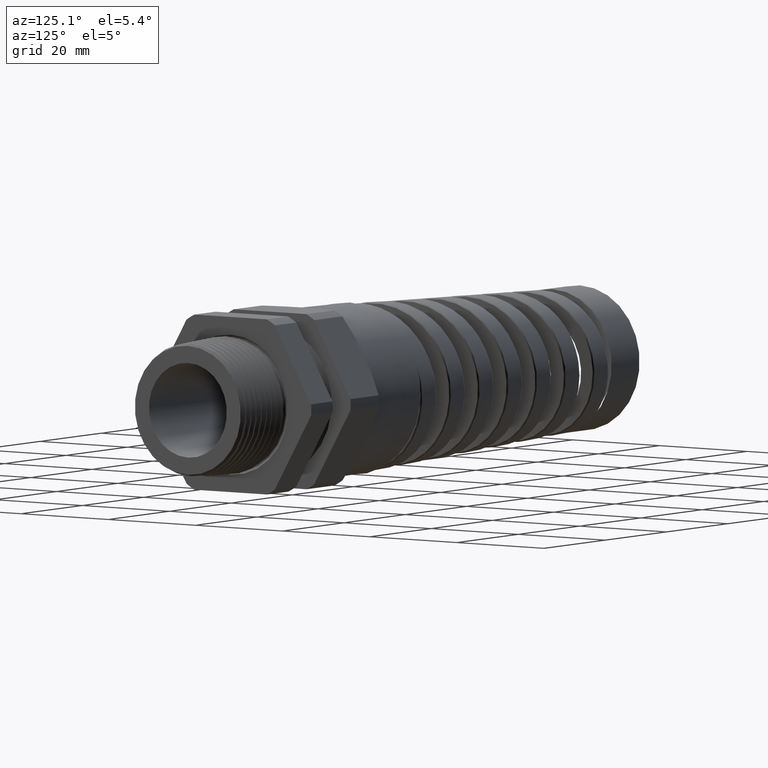
[diagram: clean part render]
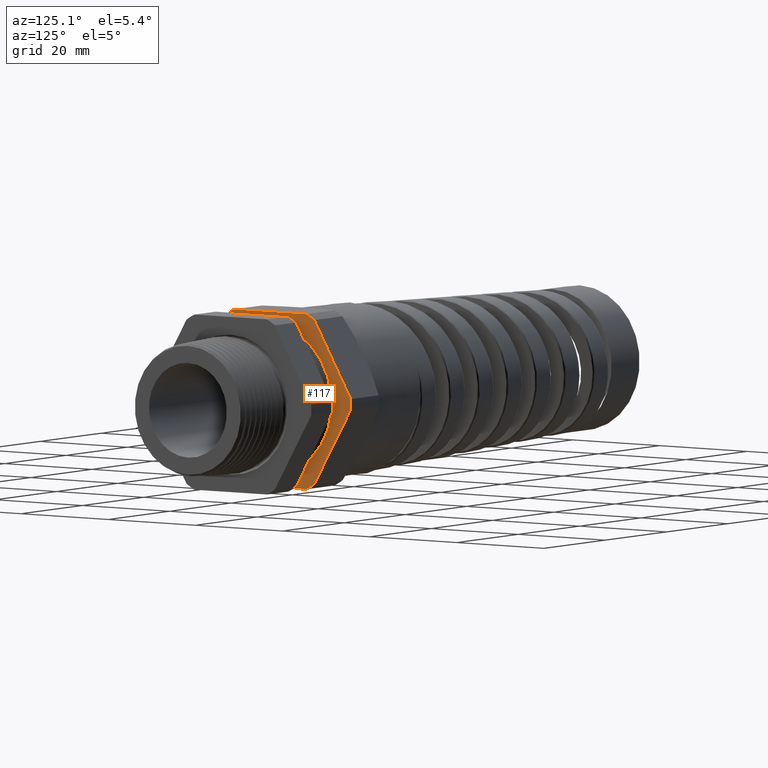
[diagram: same view with one face highlighted and labeled with its STEP entity id]
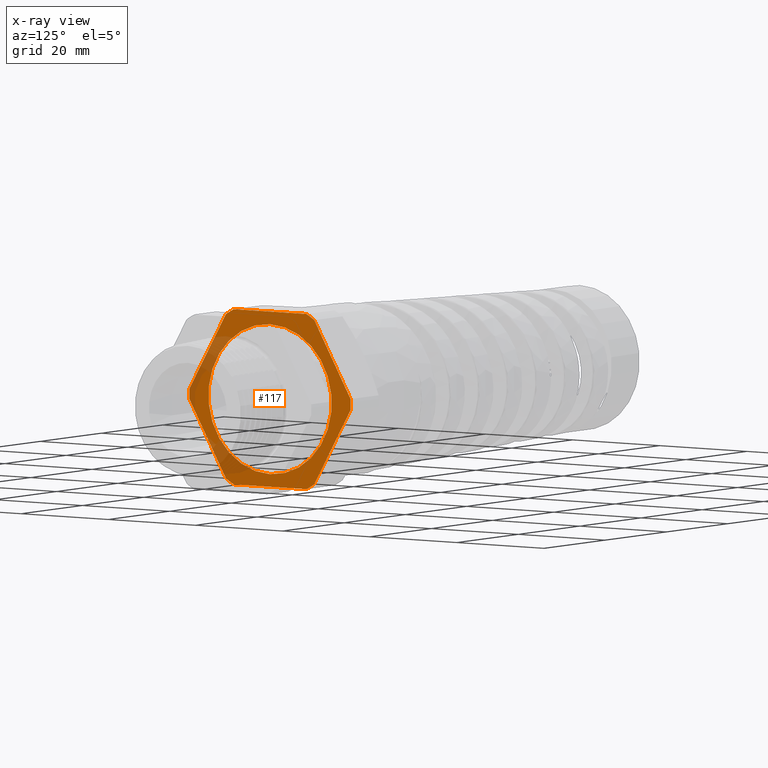
[diagram: x-ray of the same camera — body ghosted, the highlighted face saturated]
A machine part, auxiliary view. The second image highlights one B-rep face of the part: STEP entity #117.
The next image is the same camera in x-ray: the body ghosted, the highlighted face saturated — about 18% of this face is hidden behind the body in this view.
In plain terms, the highlighted planar face has unit normal (-1, 0, 0).
Its self-contained STEP definition (entity closure, byte-faithful):
#112 = EDGE_CURVE ( 'NONE', #9888, #9638, #12556, .T. ) ;
#113 = ORIENTED_EDGE ( 'NONE', *, *, #112, .F. ) ;
#117 = ADVANCED_FACE ( 'NONE', ( #12551, #12550 ), #12549, .F. ) ;
#212 = EDGE_CURVE ( 'NONE', #13719, #4190, #12669, .T. ) ;
#377 = ORIENTED_EDGE ( 'NONE', *, *, #212, .F. ) ;
#378 = ORIENTED_EDGE ( 'NONE', *, *, #13845, .F. ) ;
#518 = ORIENTED_EDGE ( 'NONE', *, *, #3983, .F. ) ;
#732 = VERTEX_POINT ( 'NONE', #13358 ) ;
#2852 = DIRECTION ( 'NONE',  ( 0.0000000000000000000, 0.5000000000000003300, -0.8660254037844383700 ) ) ;
#2853 = VECTOR ( 'NONE', #2852, 39.37007874015748100 ) ;
#2862 = CARTESIAN_POINT ( 'NONE',  ( -0.5058333333333334700, 0.7020415124598852200, 0.08402843139697996300 ) ) ;
#2863 = LINE ( 'NONE', #2862, #2853 ) ;
#2884 = CARTESIAN_POINT ( 'NONE',  ( -0.5058333333333336900, 0.7268402752278255700, 0.04107571431805956400 ) ) ;
#2889 = DIRECTION ( 'NONE',  ( 0.0000000000000000000, 0.0000000000000000000, 1.000000000000000000 ) ) ;
#2890 = DIRECTION ( 'NONE',  ( -1.000000000000000000, 0.0000000000000000000, 0.0000000000000000000 ) ) ;
#2891 = AXIS2_PLACEMENT_3D ( 'NONE', #2898, #2890, #2889 ) ;
#2892 = CIRCLE ( 'NONE', #2891, 0.7280000000000000900 ) ;
#2898 = CARTESIAN_POINT ( 'NONE',  ( -0.5058333333333334700, 0.0000000000000000000, 0.0000000000000000000 ) ) ;
#2902 = DIRECTION ( 'NONE',  ( 0.0000000000000000000, -0.5000000000000001100, -0.8660254037844386000 ) ) ;
#2903 = VECTOR ( 'NONE', #2902, 39.37007874015748100 ) ;
#2904 = CARTESIAN_POINT ( 'NONE',  ( -0.5058333333333334700, 0.7020415124598851100, -0.08402843139697985200 ) ) ;
#2913 = LINE ( 'NONE', #2904, #2903 ) ;
#2935 = CARTESIAN_POINT ( 'NONE',  ( -0.5058333333333334700, -0.4237915124598847800, -0.5659715686030204500 ) ) ;
#2937 = LINE ( 'NONE', #2935, #9113 ) ;
#2959 = CARTESIAN_POINT ( 'NONE',  ( -0.5058333333333336900, 0.3278475255358810900, -0.6500000000000000200 ) ) ;
#2965 = DIRECTION ( 'NONE',  ( 0.0000000000000000000, -1.000000000000000000, 0.0000000000000000000 ) ) ;
#2966 = VECTOR ( 'NONE', #2965, 39.37007874015748100 ) ;
#2967 = CARTESIAN_POINT ( 'NONE',  ( -0.5058333333333334700, 0.5565000000000001100, -0.6500000000000000200 ) ) ;
#2972 = LINE ( 'NONE', #2967, #2966 ) ;
#2986 = CARTESIAN_POINT ( 'NONE',  ( -0.5058333333333334700, 0.0000000000000000000, 0.0000000000000000000 ) ) ;
#3023 = CARTESIAN_POINT ( 'NONE',  ( -0.5058333333333336900, -0.3989927496919442600, -0.6089242856819405700 ) ) ;
#3024 = DIRECTION ( 'NONE',  ( 0.0000000000000000000, 1.000000000000000000, 0.0000000000000000000 ) ) ;
#3025 = VECTOR ( 'NONE', #3024, 39.37007874015748100 ) ;
#3026 = CARTESIAN_POINT ( 'NONE',  ( -0.5058333333333334700, 0.5565000000000001100, 0.6499999999999999100 ) ) ;
#3027 = LINE ( 'NONE', #3026, #3025 ) ;
#3037 = CARTESIAN_POINT ( 'NONE',  ( -0.5058333333333336900, 0.3989927496919443200, -0.6089242856819405700 ) ) ;
#3038 = CARTESIAN_POINT ( 'NONE',  ( -0.5058333333333336900, 0.3278475255358814200, 0.6499999999999998000 ) ) ;
#3039 = DIRECTION ( 'NONE',  ( 0.0000000000000000000, 0.0000000000000000000, 1.000000000000000000 ) ) ;
#3040 = DIRECTION ( 'NONE',  ( -1.000000000000000000, 0.0000000000000000000, 0.0000000000000000000 ) ) ;
#3041 = AXIS2_PLACEMENT_3D ( 'NONE', #2986, #3040, #3039 ) ;
#3042 = CIRCLE ( 'NONE', #3041, 0.7280000000000000900 ) ;
#3075 = CARTESIAN_POINT ( 'NONE',  ( -0.5058333333333336900, 6.815159437255022100E-017, -0.5565000000000001100 ) ) ;
#3109 = DIRECTION ( 'NONE',  ( 0.0000000000000000000, 0.0000000000000000000, -1.000000000000000000 ) ) ;
#3110 = DIRECTION ( 'NONE',  ( 1.000000000000000000, 0.0000000000000000000, 0.0000000000000000000 ) ) ;
#3111 = CARTESIAN_POINT ( 'NONE',  ( -0.5058333333333336900, 0.0000000000000000000, 0.0000000000000000000 ) ) ;
#3112 = AXIS2_PLACEMENT_3D ( 'NONE', #3111, #3110, #3109 ) ;
#3113 = CIRCLE ( 'NONE', #3112, 0.5565000000000001100 ) ;
#3118 = CARTESIAN_POINT ( 'NONE',  ( -0.5058333333333336900, 0.0000000000000000000, 0.5565000000000001100 ) ) ;
#3834 = DIRECTION ( 'NONE',  ( 0.0000000000000000000, -0.5000000000000003300, 0.8660254037844383700 ) ) ;
#3897 = VERTEX_POINT ( 'NONE', #13510 ) ;
#3898 = EDGE_CURVE ( 'NONE', #9432, #3897, #13509, .T. ) ;
#3899 = VERTEX_POINT ( 'NONE', #13504 ) ;
#3983 = EDGE_CURVE ( 'NONE', #4190, #3899, #13499, .T. ) ;
#4190 = VERTEX_POINT ( 'NONE', #13554 ) ;
#4604 = VERTEX_POINT ( 'NONE', #13541 ) ;
#5086 = EDGE_CURVE ( 'NONE', #9601, #4604, #13535, .T. ) ;
#9113 = VECTOR ( 'NONE', #3834, 39.37007874015748100 ) ;
#9421 = EDGE_CURVE ( 'NONE', #4604, #9432, #2863, .T. ) ;
#9429 = EDGE_CURVE ( 'NONE', #732, #9612, #2892, .T. ) ;
#9432 = VERTEX_POINT ( 'NONE', #2884 ) ;
#9453 = EDGE_CURVE ( 'NONE', #3897, #9602, #2913, .T. ) ;
#9469 = EDGE_CURVE ( 'NONE', #9612, #13844, #2937, .T. ) ;
#9571 = EDGE_CURVE ( 'NONE', #9576, #732, #2972, .T. ) ;
#9576 = VERTEX_POINT ( 'NONE', #2959 ) ;
#9598 = EDGE_CURVE ( 'NONE', #9602, #9576, #3042, .T. ) ;
#9601 = VERTEX_POINT ( 'NONE', #3038 ) ;
#9602 = VERTEX_POINT ( 'NONE', #3037 ) ;
#9607 = EDGE_CURVE ( 'NONE', #3899, #9601, #3027, .T. ) ;
#9612 = VERTEX_POINT ( 'NONE', #3023 ) ;
#9638 = VERTEX_POINT ( 'NONE', #3075 ) ;
#9888 = VERTEX_POINT ( 'NONE', #3118 ) ;
#9891 = EDGE_CURVE ( 'NONE', #9638, #9888, #3113, .T. ) ;
#10467 = CARTESIAN_POINT ( 'NONE',  ( -0.5058333333333336900, -0.7268402752278255700, 0.04107571431805911300 ) ) ;
#10487 = DIRECTION ( 'NONE',  ( 0.0000000000000000000, 0.0000000000000000000, 1.000000000000000000 ) ) ;
#10488 = DIRECTION ( 'NONE',  ( -1.000000000000000000, 0.0000000000000000000, 0.0000000000000000000 ) ) ;
#10489 = CARTESIAN_POINT ( 'NONE',  ( -0.5058333333333334700, 0.0000000000000000000, 0.0000000000000000000 ) ) ;
#10490 = AXIS2_PLACEMENT_3D ( 'NONE', #10489, #10488, #10487 ) ;
#10491 = CIRCLE ( 'NONE', #10490, 0.7280000000000000900 ) ;
#10493 = CARTESIAN_POINT ( 'NONE',  ( -0.5058333333333336900, -0.7268402752278255700, -0.04107571431805972400 ) ) ;
#12545 = DIRECTION ( 'NONE',  ( 0.0000000000000000000, 0.0000000000000000000, 1.000000000000000000 ) ) ;
#12546 = DIRECTION ( 'NONE',  ( -1.000000000000000000, 0.0000000000000000000, 0.0000000000000000000 ) ) ;
#12547 = CARTESIAN_POINT ( 'NONE',  ( -0.5058333333333334700, 0.5565000000000001100, 0.0000000000000000000 ) ) ;
#12548 = AXIS2_PLACEMENT_3D ( 'NONE', #12547, #12546, #12545 ) ;
#12549 = PLANE ( 'NONE',  #12548 ) ;
#12550 = FACE_OUTER_BOUND ( 'NONE', #14047, .T. ) ;
#12551 = FACE_BOUND ( 'NONE', #14048, .T. ) ;
#12552 = DIRECTION ( 'NONE',  ( 0.0000000000000000000, 0.0000000000000000000, -1.000000000000000000 ) ) ;
#12553 = DIRECTION ( 'NONE',  ( 1.000000000000000000, 0.0000000000000000000, 0.0000000000000000000 ) ) ;
#12554 = CARTESIAN_POINT ( 'NONE',  ( -0.5058333333333336900, 0.0000000000000000000, 0.0000000000000000000 ) ) ;
#12555 = AXIS2_PLACEMENT_3D ( 'NONE', #12554, #12553, #12552 ) ;
#12556 = CIRCLE ( 'NONE', #12555, 0.5565000000000001100 ) ;
#12669 = LINE ( 'NONE', #12745, #12744 ) ;
#12743 = DIRECTION ( 'NONE',  ( 0.0000000000000000000, 0.5000000000000000000, 0.8660254037844386000 ) ) ;
#12744 = VECTOR ( 'NONE', #12743, 39.37007874015748100 ) ;
#12745 = CARTESIAN_POINT ( 'NONE',  ( -0.5058333333333334700, -0.4237915124598847800, 0.5659715686030198900 ) ) ;
#13358 = CARTESIAN_POINT ( 'NONE',  ( -0.5058333333333336900, -0.3278475255358812000, -0.6499999999999999100 ) ) ;
#13499 = CIRCLE ( 'NONE', #13563, 0.7280000000000000900 ) ;
#13504 = CARTESIAN_POINT ( 'NONE',  ( -0.5058333333333336900, -0.3278475255358813700, 0.6499999999999999100 ) ) ;
#13505 = DIRECTION ( 'NONE',  ( 0.0000000000000000000, 0.0000000000000000000, 1.000000000000000000 ) ) ;
#13506 = DIRECTION ( 'NONE',  ( -1.000000000000000000, 0.0000000000000000000, 0.0000000000000000000 ) ) ;
#13507 = CARTESIAN_POINT ( 'NONE',  ( -0.5058333333333334700, 0.0000000000000000000, 0.0000000000000000000 ) ) ;
#13508 = AXIS2_PLACEMENT_3D ( 'NONE', #13507, #13506, #13505 ) ;
#13509 = CIRCLE ( 'NONE', #13508, 0.7280000000000000900 ) ;
#13510 = CARTESIAN_POINT ( 'NONE',  ( -0.5058333333333336900, 0.7268402752278256800, -0.04107571431805931400 ) ) ;
#13531 = DIRECTION ( 'NONE',  ( 0.0000000000000000000, 0.0000000000000000000, 1.000000000000000000 ) ) ;
#13532 = DIRECTION ( 'NONE',  ( -1.000000000000000000, 0.0000000000000000000, 0.0000000000000000000 ) ) ;
#13533 = CARTESIAN_POINT ( 'NONE',  ( -0.5058333333333334700, 0.0000000000000000000, 0.0000000000000000000 ) ) ;
#13534 = AXIS2_PLACEMENT_3D ( 'NONE', #13533, #13532, #13531 ) ;
#13535 = CIRCLE ( 'NONE', #13534, 0.7280000000000000900 ) ;
#13541 = CARTESIAN_POINT ( 'NONE',  ( -0.5058333333333336900, 0.3989927496919443200, 0.6089242856819405700 ) ) ;
#13554 = CARTESIAN_POINT ( 'NONE',  ( -0.5058333333333336900, -0.3989927496919437600, 0.6089242856819410100 ) ) ;
#13560 = DIRECTION ( 'NONE',  ( 0.0000000000000000000, 0.0000000000000000000, 1.000000000000000000 ) ) ;
#13561 = DIRECTION ( 'NONE',  ( -1.000000000000000000, 0.0000000000000000000, 0.0000000000000000000 ) ) ;
#13562 = CARTESIAN_POINT ( 'NONE',  ( -0.5058333333333334700, 0.0000000000000000000, 0.0000000000000000000 ) ) ;
#13563 = AXIS2_PLACEMENT_3D ( 'NONE', #13562, #13561, #13560 ) ;
#13719 = VERTEX_POINT ( 'NONE', #10467 ) ;
#13844 = VERTEX_POINT ( 'NONE', #10493 ) ;
#13845 = EDGE_CURVE ( 'NONE', #13844, #13719, #10491, .T. ) ;
#14047 = EDGE_LOOP ( 'NONE', ( #14057, #14063, #14053, #14062, #14052, #14066, #14051, #14058, #14065, #518, #377, #378 ) ) ;
#14048 = EDGE_LOOP ( 'NONE', ( #113, #14055 ) ) ;
#14051 = ORIENTED_EDGE ( 'NONE', *, *, #9421, .F. ) ;
#14052 = ORIENTED_EDGE ( 'NONE', *, *, #9453, .F. ) ;
#14053 = ORIENTED_EDGE ( 'NONE', *, *, #9571, .F. ) ;
#14055 = ORIENTED_EDGE ( 'NONE', *, *, #9891, .F. ) ;
#14057 = ORIENTED_EDGE ( 'NONE', *, *, #9469, .F. ) ;
#14058 = ORIENTED_EDGE ( 'NONE', *, *, #5086, .F. ) ;
#14062 = ORIENTED_EDGE ( 'NONE', *, *, #9598, .F. ) ;
#14063 = ORIENTED_EDGE ( 'NONE', *, *, #9429, .F. ) ;
#14065 = ORIENTED_EDGE ( 'NONE', *, *, #9607, .F. ) ;
#14066 = ORIENTED_EDGE ( 'NONE', *, *, #3898, .F. ) ;